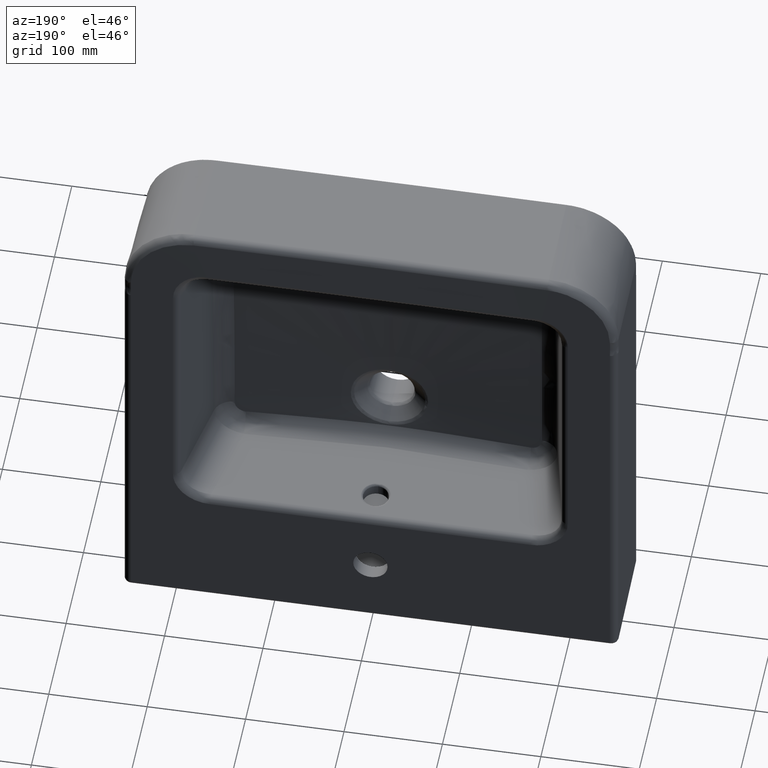
[diagram: clean part render]
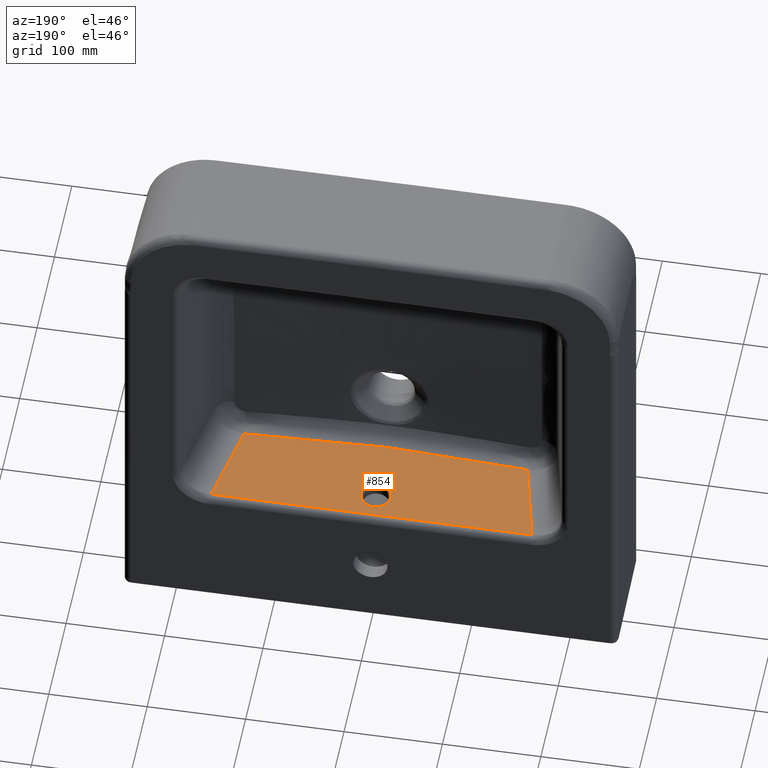
[diagram: same view with one face highlighted and labeled with its STEP entity id]
A machine part, auxiliary view. The second image highlights one B-rep face of the part: STEP entity #854.
In plain terms, the highlighted planar face has unit normal (-0, -0.0872, -0.9962).
Its self-contained STEP definition (entity closure, byte-faithful):
#218=FACE_BOUND('',#1454,.T.);
#219=FACE_BOUND('',#1455,.T.);
#415=PLANE('',#4740);
#483=ELLIPSE('',#4739,15.0572975614815,15.);
#604=LINE('',#6603,#757);
#605=LINE('',#6606,#758);
#606=LINE('',#6608,#759);
#757=VECTOR('',#5285,1.);
#758=VECTOR('',#5286,1.);
#759=VECTOR('',#5287,1.);
#854=ADVANCED_FACE('',(#218,#219),#415,.F.);
#1454=EDGE_LOOP('',(#2102));
#1455=EDGE_LOOP('',(#2103,#2104,#2105,#2106));
#2102=ORIENTED_EDGE('',*,*,#3878,.T.);
#2103=ORIENTED_EDGE('',*,*,#3879,.F.);
#2104=ORIENTED_EDGE('',*,*,#3880,.T.);
#2105=ORIENTED_EDGE('',*,*,#3881,.T.);
#2106=ORIENTED_EDGE('',*,*,#3882,.T.);
#3468=VERTEX_POINT('',#6602);
#3469=VERTEX_POINT('',#6604);
#3470=VERTEX_POINT('',#6605);
#3471=VERTEX_POINT('',#6607);
#3472=VERTEX_POINT('',#6609);
#3878=EDGE_CURVE('',#3468,#3468,#483,.T.);
#3879=EDGE_CURVE('',#3469,#3470,#604,.T.);
#3880=EDGE_CURVE('',#3469,#3471,#605,.T.);
#3881=EDGE_CURVE('',#3471,#3472,#606,.T.);
#3882=EDGE_CURVE('',#3472,#3470,#4441,.T.);
#4441=B_SPLINE_CURVE_WITH_KNOTS('',3,(#6610,#6611,#6612,#6613,#6614,#6615,
#6616,#6617,#6618,#6619,#6620,#6621,#6622,#6623),.UNSPECIFIED.,.F.,.F.,
(4,2,2,2,2,2,4),(0.,0.25,0.375,0.5,0.625,0.75,1.),.UNSPECIFIED.);
#4739=AXIS2_PLACEMENT_3D('',#6601,#5283,#5284);
#4740=AXIS2_PLACEMENT_3D('',#6624,#5288,#5289);
#5283=DIRECTION('',(-2.76499572738385E-015,0.996194698202151,-0.087155741485723));
#5284=DIRECTION('',(-3.16040462420092E-014,-0.087155741485723,-0.996194698202151));
#5285=DIRECTION('',(-0.225182548987197,-0.0849172849364292,-0.970609022392979));
#5286=DIRECTION('',(-1.,-2.7755575615629E-015,-2.46519032881566E-032));
#5287=DIRECTION('',(0.225182548987197,-0.0849172849364292,-0.970609022392979));
#5288=DIRECTION('',(-2.76499572738385E-015,0.996194698202151,-0.087155741485723));
#5289=DIRECTION('',(0.,0.087155741485723,0.996194698202151));
#6601=CARTESIAN_POINT('',(5.52999145476771E-015,52.5849036042864,-4.19737621060407));
#6602=CARTESIAN_POINT('',(-4.70341536957985E-013,51.2725736705443,-19.1973762106041));
#6603=CARTESIAN_POINT('',(142.415036314672,46.9982146365298,-68.0535242429719));
#6604=CARTESIAN_POINT('',(163.020752700367,54.7687168247023,20.7637234823972));
#6605=CARTESIAN_POINT('',(144.086973144875,47.6287090369377,-60.846940164569));
#6606=CARTESIAN_POINT('',(-164.613346189074,54.7687168247023,20.7637234823971));
#6607=CARTESIAN_POINT('',(-163.020752700367,54.7687168247023,20.7637234823971));
#6608=CARTESIAN_POINT('',(-142.415036314672,46.9982146365298,-68.0535242429719));
#6609=CARTESIAN_POINT('',(-144.086973144875,47.6287090369377,-60.846940164569));
#6610=CARTESIAN_POINT('',(-144.086973144874,47.6287090369376,-60.846940164569));
#6611=CARTESIAN_POINT('',(-120.082439243314,47.5226040905671,-62.0597252688614));
#6612=CARTESIAN_POINT('',(-96.0776144542564,47.417130670246,-63.2652919972719));
#6613=CARTESIAN_POINT('',(-60.0641134769591,47.2725194360244,-64.9182059921095));
#6614=CARTESIAN_POINT('',(-48.0586661539586,47.2263716525348,-65.4456775787476));
#6615=CARTESIAN_POINT('',(-24.0393481765244,47.1523634072028,-66.2915957060715));
#6616=CARTESIAN_POINT('',(-12.0246374407798,47.1255497956828,-66.598076692642));
#6617=CARTESIAN_POINT('',(12.0280473597376,47.1255545287984,-66.5980225928841));
#6618=CARTESIAN_POINT('',(24.042087410575,47.1523704707877,-66.2915149689262));
#6619=CARTESIAN_POINT('',(48.0608181909578,47.2263796601993,-65.4455860507261));
#6620=CARTESIAN_POINT('',(60.0659889237009,47.2725267170516,-64.91812276959));
#6621=CARTESIAN_POINT('',(96.0786713961959,47.4171354139753,-63.2652377762043));
#6622=CARTESIAN_POINT('',(120.082967163515,47.522606424083,-62.0596985966601));
#6623=CARTESIAN_POINT('',(144.086973144874,47.6287090369385,-60.8469401645688));
#6624=CARTESIAN_POINT('',(-194.672441711228,55.3692905178091,27.6283123064245));